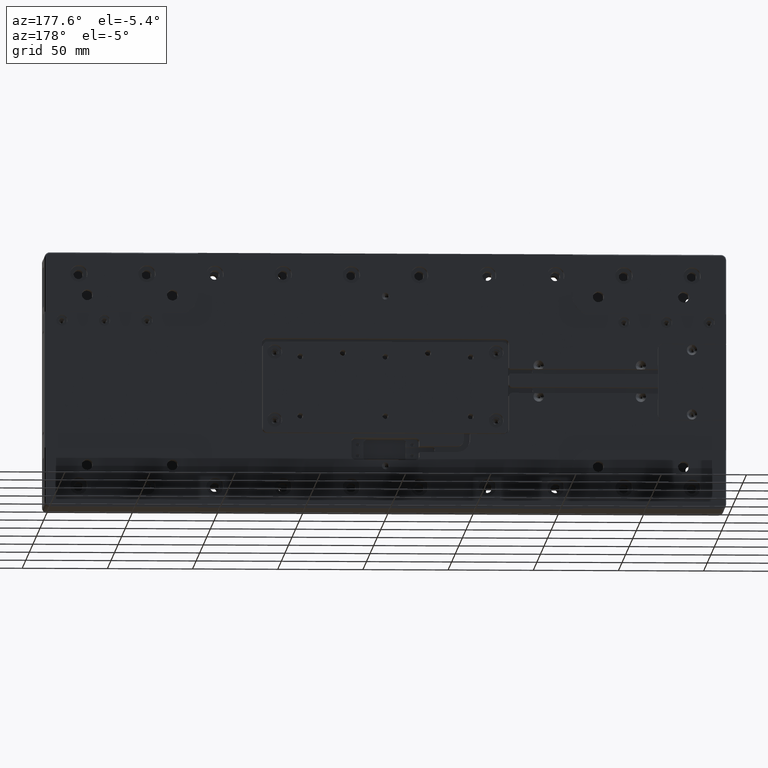
[diagram: clean part render]
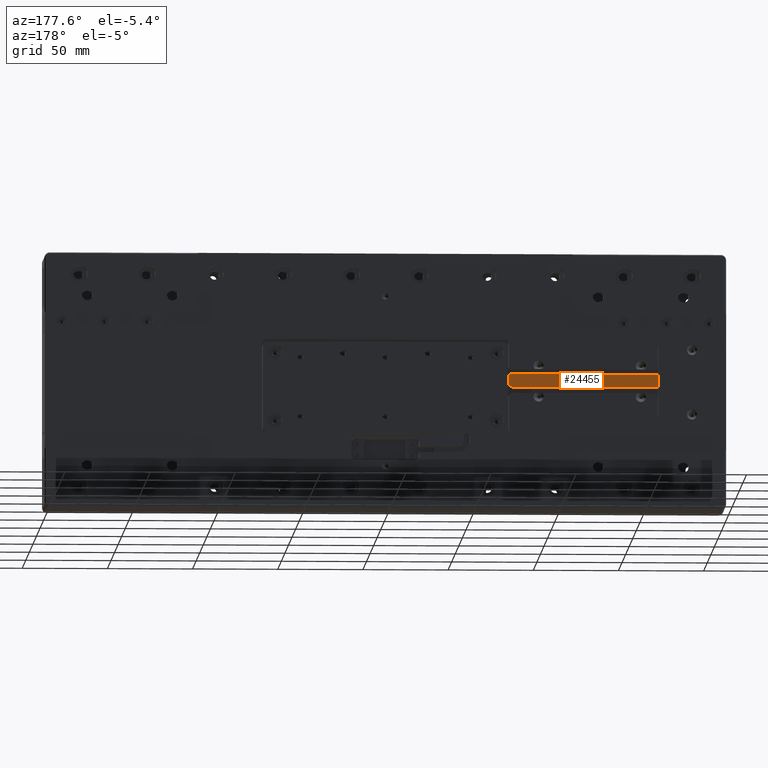
[diagram: same view with one face highlighted and labeled with its STEP entity id]
A machine part, auxiliary view. The second image highlights one B-rep face of the part: STEP entity #24455.
In plain terms, the highlighted planar face has unit normal (0, 1, 0).
Its self-contained STEP definition (entity closure, byte-faithful):
#646 = EDGE_CURVE ( 'NONE', #9884, #30903, #36801, .T. ) ;
#1166 = AXIS2_PLACEMENT_3D ( 'NONE', #36525, #30042, #11483 ) ;
#2242 = CARTESIAN_POINT ( 'NONE',  ( -73.50000000000000000, 14.49999999999999822, 3.500000000000000000 ) ) ;
#4473 = CARTESIAN_POINT ( 'NONE',  ( -160.0000000000000000, 14.50000000000000000, 4.500000000000000888 ) ) ;
#5475 = CARTESIAN_POINT ( 'NONE',  ( 0.000000000000000000, 14.50000000000000000, 0.000000000000000000 ) ) ;
#8957 = DIRECTION ( 'NONE',  ( -1.000000000000000000, -0.000000000000000000, 0.000000000000000000 ) ) ;
#9884 = VERTEX_POINT ( 'NONE', #25445 ) ;
#10818 = CIRCLE ( 'NONE', #1166, 2.000000000000000000 ) ;
#11349 = DIRECTION ( 'NONE',  ( 0.000000000000000000, 1.000000000000000000, 0.000000000000000000 ) ) ;
#11410 = VECTOR ( 'NONE', #8957, 1000.000000000000000 ) ;
#11483 = DIRECTION ( 'NONE',  ( 0.000000000000000000, 0.000000000000000000, -1.000000000000000000 ) ) ;
#11902 = LINE ( 'NONE', #20618, #14982 ) ;
#12377 = ORIENTED_EDGE ( 'NONE', *, *, #35714, .T. ) ;
#13641 = VECTOR ( 'NONE', #17042, 1000.000000000000000 ) ;
#14454 = VECTOR ( 'NONE', #22139, 1000.000000000000000 ) ;
#14852 = VERTEX_POINT ( 'NONE', #4473 ) ;
#14882 = ORIENTED_EDGE ( 'NONE', *, *, #31546, .T. ) ;
#14982 = VECTOR ( 'NONE', #20811, 1000.000000000000000 ) ;
#15524 = CARTESIAN_POINT ( 'NONE',  ( -160.0000000000000000, 14.50000000000000000, -3.250000000000000888 ) ) ;
#15678 = CARTESIAN_POINT ( 'NONE',  ( -160.0000000000000000, 14.50000000000000000, 0.000000000000000000 ) ) ;
#17042 = DIRECTION ( 'NONE',  ( 1.000000000000000000, -0.000000000000000000, 0.000000000000000000 ) ) ;
#17801 = DIRECTION ( 'NONE',  ( 0.000000000000000000, -0.000000000000000000, 1.000000000000000000 ) ) ;
#19391 = AXIS2_PLACEMENT_3D ( 'NONE', #2242, #35598, #32948 ) ;
#19855 = AXIS2_PLACEMENT_3D ( 'NONE', #5475, #11349, #17801 ) ;
#19869 = CARTESIAN_POINT ( 'NONE',  ( -200.0000000000000000, 14.50000000000000000, 4.500000000000000888 ) ) ;
#19969 = CARTESIAN_POINT ( 'NONE',  ( -74.50000000000000000, 14.49999999999999822, -3.250000000000000444 ) ) ;
#20618 = CARTESIAN_POINT ( 'NONE',  ( -72.50000000000000000, 14.50000000000000000, 0.000000000000000000 ) ) ;
#20811 = DIRECTION ( 'NONE',  ( -0.000000000000000000, 0.000000000000000000, -1.000000000000000000 ) ) ;
#21555 = VERTEX_POINT ( 'NONE', #25699 ) ;
#22139 = DIRECTION ( 'NONE',  ( 0.000000000000000000, -0.000000000000000000, 1.000000000000000000 ) ) ;
#22835 = ORIENTED_EDGE ( 'NONE', *, *, #646, .F. ) ;
#23255 = EDGE_CURVE ( 'NONE', #21555, #29495, #10818, .T. ) ;
#24027 = ORIENTED_EDGE ( 'NONE', *, *, #23255, .T. ) ;
#24138 = EDGE_CURVE ( 'NONE', #29495, #24704, #27946, .T. ) ;
#24455 = ADVANCED_FACE ( 'NONE', ( #39043 ), #33147, .T. ) ;
#24704 = VERTEX_POINT ( 'NONE', #15524 ) ;
#25445 = CARTESIAN_POINT ( 'NONE',  ( -72.50000000000000000, 14.49999999999999822, 3.500000000000000000 ) ) ;
#25699 = CARTESIAN_POINT ( 'NONE',  ( -72.50000000000000000, 14.49999999999999822, -1.250000000000000222 ) ) ;
#27946 = LINE ( 'NONE', #36630, #11410 ) ;
#29495 = VERTEX_POINT ( 'NONE', #19969 ) ;
#30042 = DIRECTION ( 'NONE',  ( -0.000000000000000000, 1.000000000000000000, -0.000000000000000000 ) ) ;
#30903 = VERTEX_POINT ( 'NONE', #34265 ) ;
#31411 = ORIENTED_EDGE ( 'NONE', *, *, #32096, .T. ) ;
#31546 = EDGE_CURVE ( 'NONE', #14852, #30903, #35024, .T. ) ;
#32023 = ORIENTED_EDGE ( 'NONE', *, *, #24138, .T. ) ;
#32096 = EDGE_CURVE ( 'NONE', #9884, #21555, #11902, .T. ) ;
#32948 = DIRECTION ( 'NONE',  ( 4.163336342344335133E-14, 0.000000000000000000, 1.000000000000000000 ) ) ;
#33147 = PLANE ( 'NONE',  #19855 ) ;
#34257 = LINE ( 'NONE', #15678, #14454 ) ;
#34265 = CARTESIAN_POINT ( 'NONE',  ( -73.50000000000001421, 14.49999999999999822, 4.500000000000000888 ) ) ;
#35024 = LINE ( 'NONE', #19869, #13641 ) ;
#35598 = DIRECTION ( 'NONE',  ( -0.000000000000000000, -1.000000000000000000, -0.000000000000000000 ) ) ;
#35714 = EDGE_CURVE ( 'NONE', #24704, #14852, #34257, .T. ) ;
#36525 = CARTESIAN_POINT ( 'NONE',  ( -74.50000000000000000, 14.49999999999999822, -1.250000000000000000 ) ) ;
#36630 = CARTESIAN_POINT ( 'NONE',  ( -54.00000000000000000, 14.50000000000000000, -3.250000000000000444 ) ) ;
#36801 = CIRCLE ( 'NONE', #19391, 1.000000000000000444 ) ;
#39043 = FACE_OUTER_BOUND ( 'NONE', #39104, .T. ) ;
#39104 = EDGE_LOOP ( 'NONE', ( #31411, #24027, #32023, #12377, #14882, #22835 ) ) ;